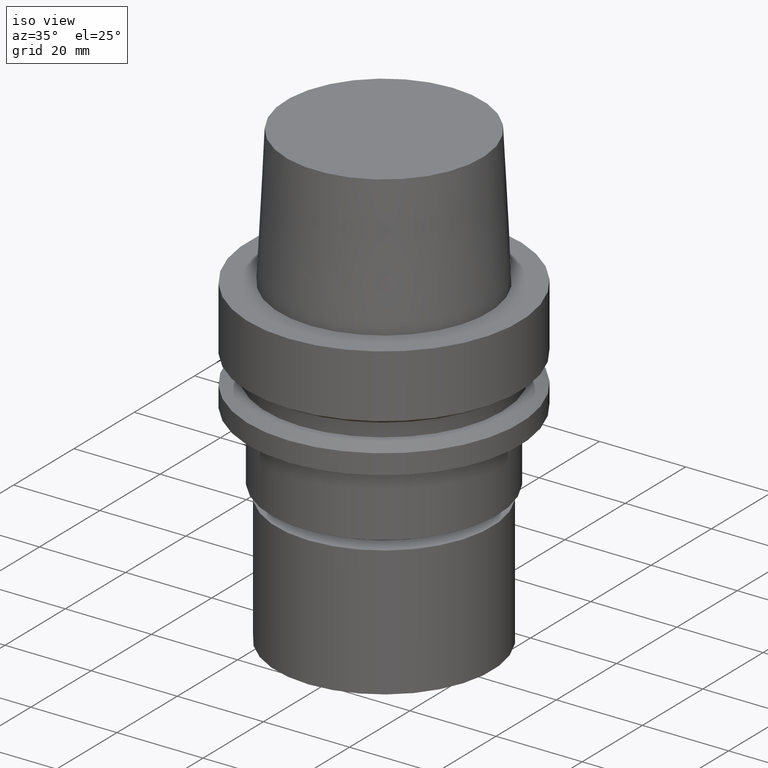
[diagram: clean part render]
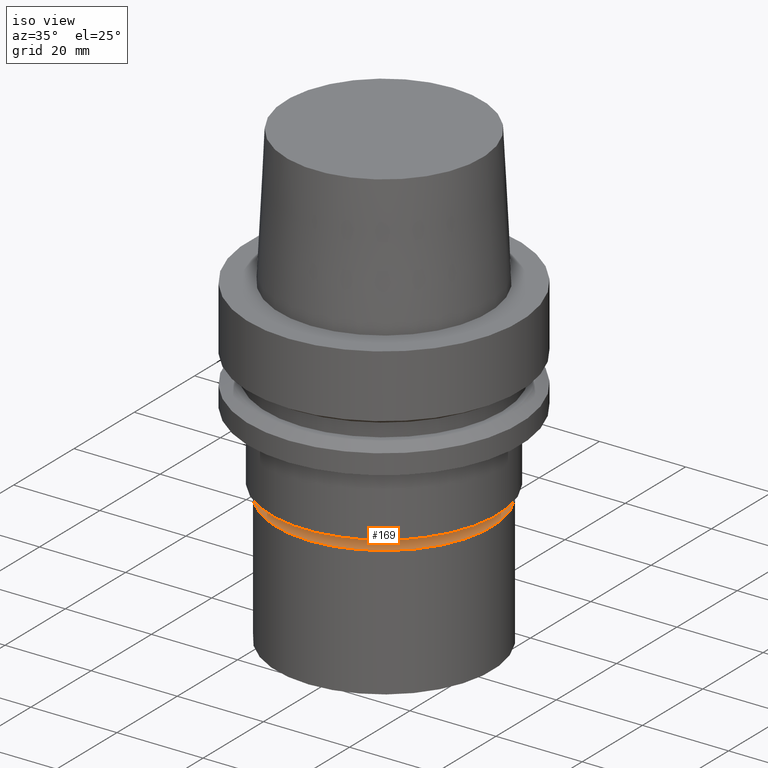
[diagram: same view with one face highlighted and labeled with its STEP entity id]
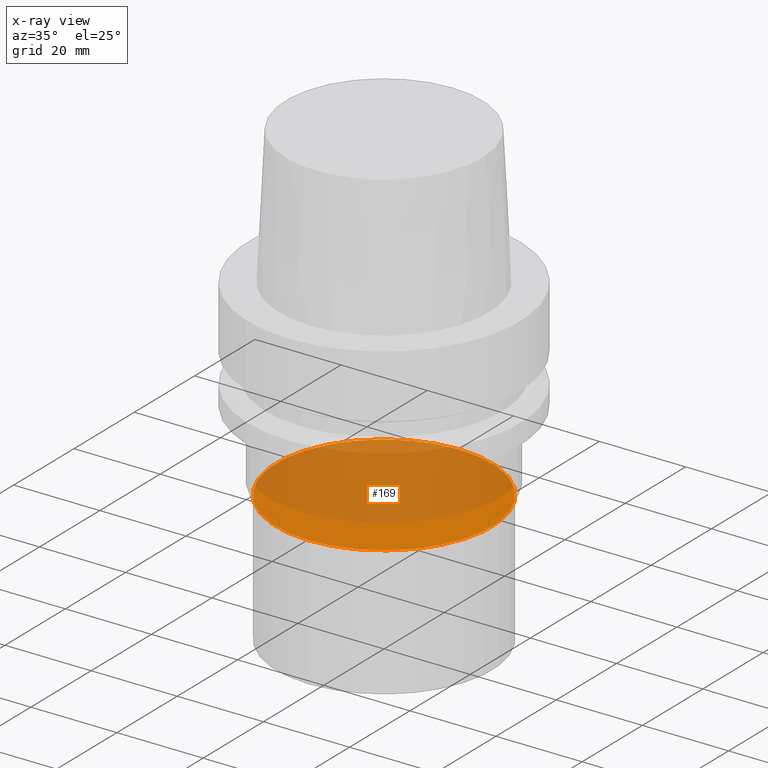
[diagram: x-ray of the same camera — body ghosted, the highlighted face saturated]
A machine part, iso view. The second image highlights one B-rep face of the part: STEP entity #169.
The next image is the same camera in x-ray: the body ghosted, the highlighted face saturated — about 70% of this face is hidden behind the body in this view.
In plain terms, the highlighted planar face has unit normal (-0, -0, 1).
Its self-contained STEP definition (entity closure, byte-faithful):
#128=EDGE_CURVE('Unnamed[1]',#283,#283,#284,.T.);
#169=ADVANCED_FACE('Unnamed[1]',(#344),#345,.T.);
#283=VERTEX_POINT('',#478);
#284=CIRCLE('',#479,25.0);
#344=FACE_OUTER_BOUND('',#555,.T.);
#345=PLANE('',#556);
#478=CARTESIAN_POINT('',(2.74320883009007E-015,25.0,-44.8));
#479=AXIS2_PLACEMENT_3D('',#672,#673,#674);
#555=EDGE_LOOP('',(#736));
#556=AXIS2_PLACEMENT_3D('',#737,#738,#739);
#672=CARTESIAN_POINT('',(2.74320883009007E-015,5.48641766018014E-015,-44.8));
#673=DIRECTION('',(6.12323399573677E-017,1.22464679914735E-016,-1.0));
#674=DIRECTION('',(-1.23259516440783E-032,1.0,1.22464679914735E-016));
#736=ORIENTED_EDGE('',*,*,#128,.F.);
#737=CARTESIAN_POINT('',(2.74320883009007E-015,12.5,-44.8));
#738=DIRECTION('',(-6.12323399573677E-017,-1.22464679914735E-016,1.0));
#739=DIRECTION('',(1.23259516440783E-032,-1.0,-1.22464679914735E-016));